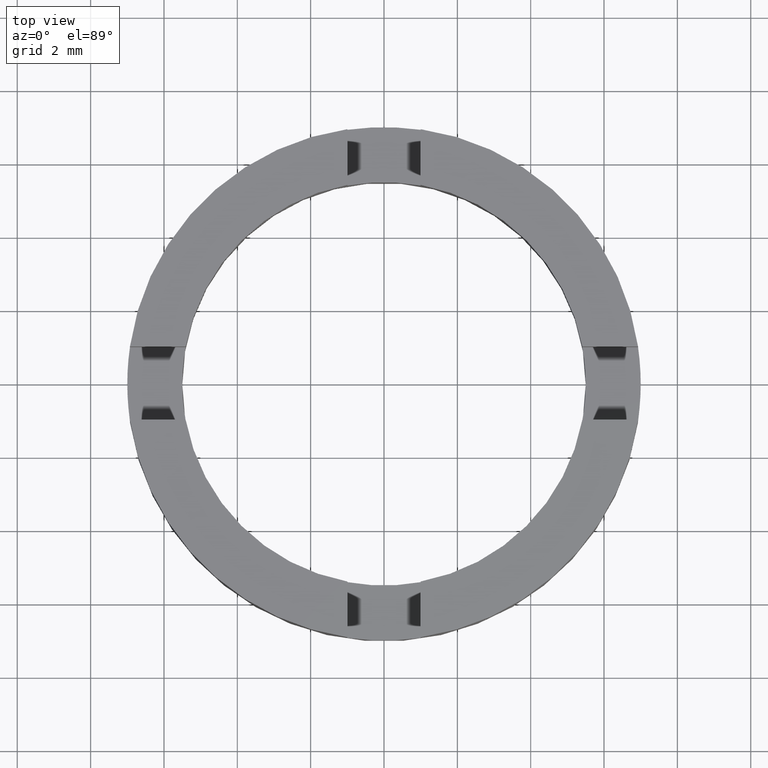
[diagram: clean part render]
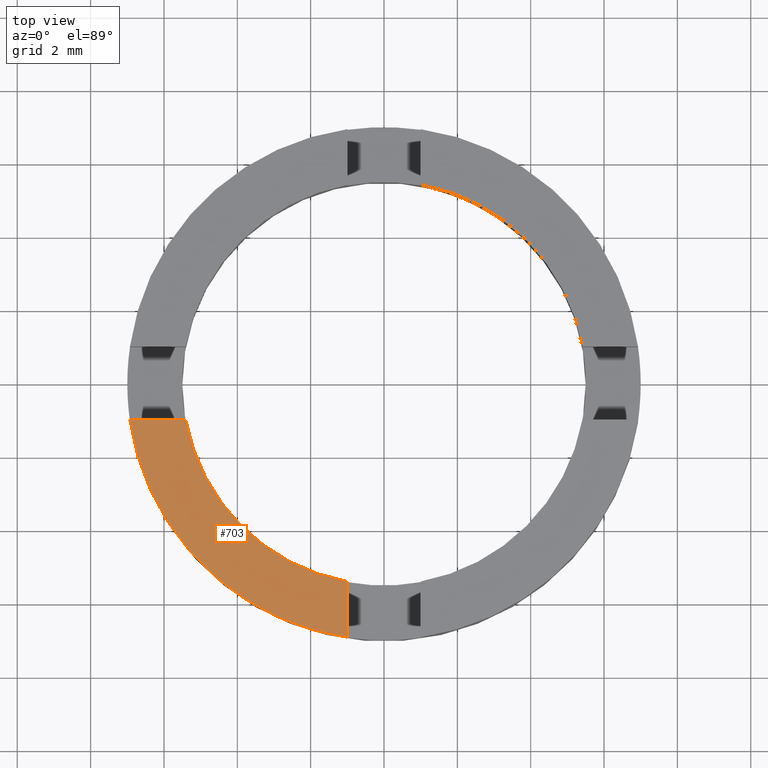
[diagram: same view with one face highlighted and labeled with its STEP entity id]
A machine part, top view. The second image highlights one B-rep face of the part: STEP entity #703.
In plain terms, the highlighted planar face has unit normal (0, 0, 1).
Its self-contained STEP definition (entity closure, byte-faithful):
#14 = ORIENTED_EDGE ( 'NONE', *, *, #107, .T. ) ;
#20 = CIRCLE ( 'NONE', #777, 7.000000000000000000 ) ;
#36 = LINE ( 'NONE', #601, #310 ) ;
#53 = DIRECTION ( 'NONE',  ( 1.000000000000000000, -3.732753193842950078E-15, 0.000000000000000000 ) ) ;
#64 = EDGE_CURVE ( 'NONE', #294, #677, #20, .T. ) ;
#70 = CARTESIAN_POINT ( 'NONE',  ( 0.000000000000000000, 0.000000000000000000, 2.500000000000000000 ) ) ;
#84 = CARTESIAN_POINT ( 'NONE',  ( -0.9999999999999986677, -5.408326913195983465, 2.500000000000000000 ) ) ;
#107 = EDGE_CURVE ( 'NONE', #677, #123, #529, .T. ) ;
#113 = CARTESIAN_POINT ( 'NONE',  ( 0.000000000000000000, 0.000000000000000000, 2.500000000000000000 ) ) ;
#123 = VERTEX_POINT ( 'NONE', #84 ) ;
#131 = DIRECTION ( 'NONE',  ( 0.000000000000000000, 0.000000000000000000, 1.000000000000000000 ) ) ;
#133 = ORIENTED_EDGE ( 'NONE', *, *, #597, .F. ) ;
#140 = CARTESIAN_POINT ( 'NONE',  ( -0.9999999999999986677, -6.928203230275509661, 2.500000000000000000 ) ) ;
#184 = DIRECTION ( 'NONE',  ( 0.000000000000000000, 0.000000000000000000, 1.000000000000000000 ) ) ;
#204 = EDGE_CURVE ( 'NONE', #294, #632, #36, .T. ) ;
#224 = CIRCLE ( 'NONE', #645, 5.500000000000000000 ) ;
#274 = VECTOR ( 'NONE', #682, 1000.000000000000000 ) ;
#294 = VERTEX_POINT ( 'NONE', #417 ) ;
#310 = VECTOR ( 'NONE', #53, 1000.000000000000000 ) ;
#330 = DIRECTION ( 'NONE',  ( 0.000000000000000000, 0.000000000000000000, 1.000000000000000000 ) ) ;
#361 = ORIENTED_EDGE ( 'NONE', *, *, #204, .F. ) ;
#366 = FACE_OUTER_BOUND ( 'NONE', #672, .T. ) ;
#371 = CARTESIAN_POINT ( 'NONE',  ( -5.408326913195986130, -0.9999999999999811262, 2.500000000000000000 ) ) ;
#417 = CARTESIAN_POINT ( 'NONE',  ( -6.928203230275513214, -0.9999999999999754641, 2.500000000000000000 ) ) ;
#453 = CARTESIAN_POINT ( 'NONE',  ( -0.9999999999999986677, 0.000000000000000000, 2.500000000000000000 ) ) ;
#511 = AXIS2_PLACEMENT_3D ( 'NONE', #525, #330, #664 ) ;
#525 = CARTESIAN_POINT ( 'NONE',  ( 0.000000000000000000, 0.000000000000000000, 2.500000000000000000 ) ) ;
#529 = LINE ( 'NONE', #453, #274 ) ;
#548 = ORIENTED_EDGE ( 'NONE', *, *, #64, .T. ) ;
#597 = EDGE_CURVE ( 'NONE', #632, #123, #224, .T. ) ;
#601 = CARTESIAN_POINT ( 'NONE',  ( -3.732753193842954812E-15, -1.000000000000001332, 2.500000000000000000 ) ) ;
#611 = DIRECTION ( 'NONE',  ( 1.000000000000000000, 0.000000000000000000, 0.000000000000000000 ) ) ;
#632 = VERTEX_POINT ( 'NONE', #371 ) ;
#645 = AXIS2_PLACEMENT_3D ( 'NONE', #113, #184, #741 ) ;
#664 = DIRECTION ( 'NONE',  ( 1.000000000000000000, 0.000000000000000000, -0.000000000000000000 ) ) ;
#672 = EDGE_LOOP ( 'NONE', ( #361, #548, #14, #133 ) ) ;
#675 = PLANE ( 'NONE',  #511 ) ;
#677 = VERTEX_POINT ( 'NONE', #140 ) ;
#682 = DIRECTION ( 'NONE',  ( 0.000000000000000000, 1.000000000000000000, -0.000000000000000000 ) ) ;
#703 = ADVANCED_FACE ( 'NONE', ( #366 ), #675, .T. ) ;
#741 = DIRECTION ( 'NONE',  ( 1.000000000000000000, 0.000000000000000000, 0.000000000000000000 ) ) ;
#777 = AXIS2_PLACEMENT_3D ( 'NONE', #70, #131, #611 ) ;